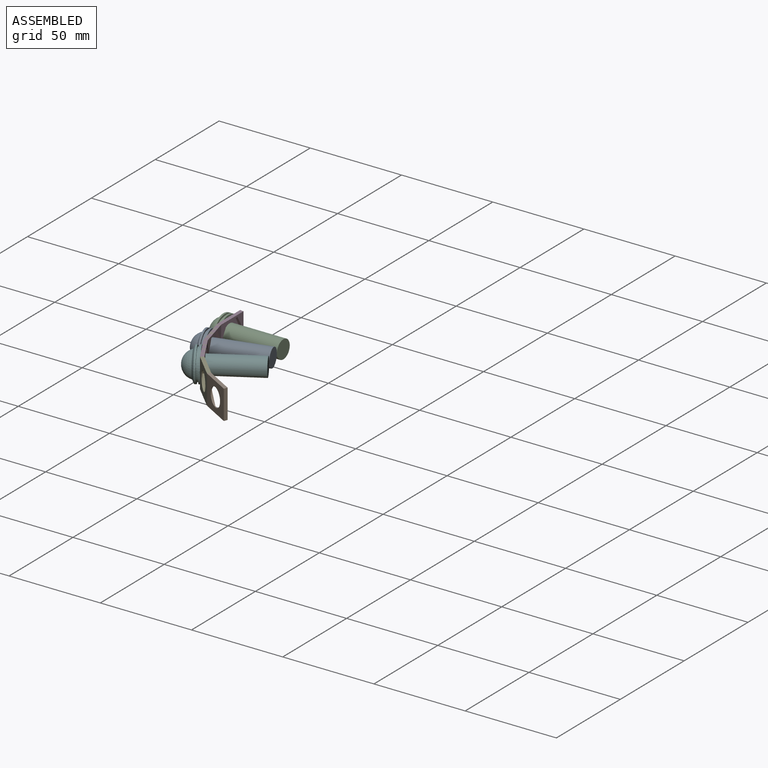
[diagram: assembled view]
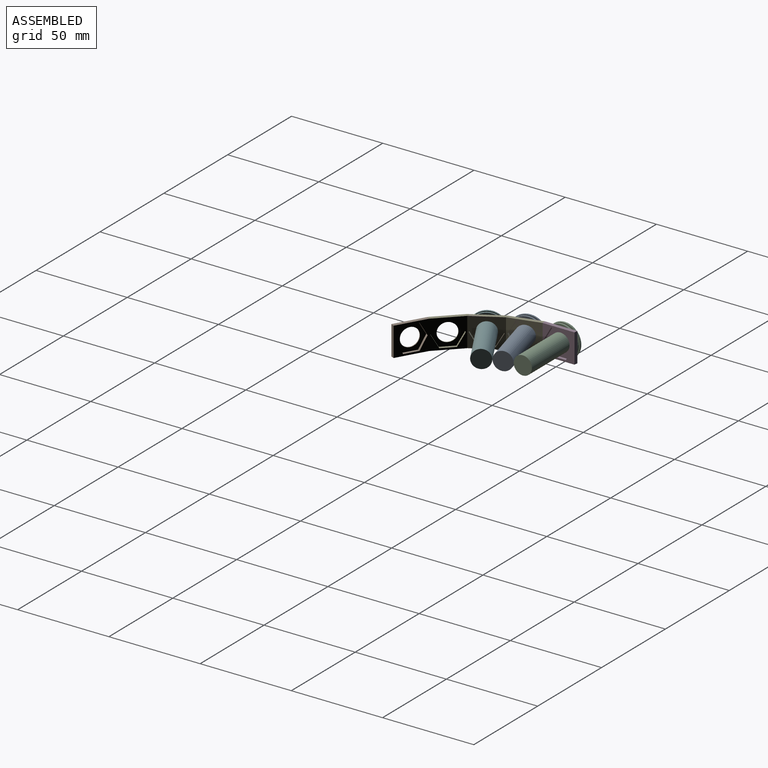
[diagram: assembled view, second angle]
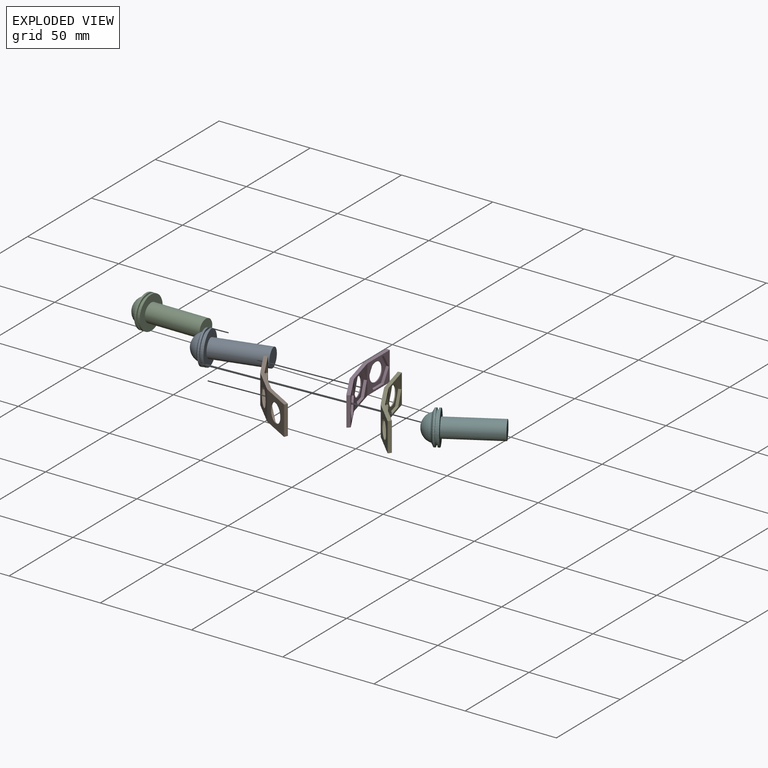
[diagram: exploded view]
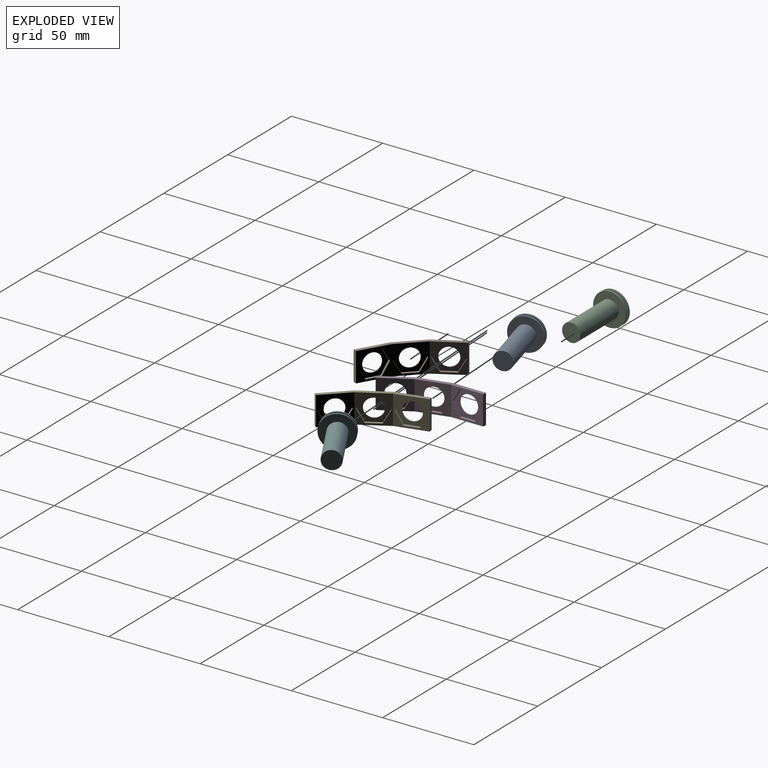
[diagram: exploded view, second angle]
ASSEMBLY  parts=6 mates=3
PART A: 10 faces, bbox 39.3x18x18 mm
  f0: cone r=9mm half-angle=63.4deg, axis (1,0,0), area 112.4mm2, adj f1,f7
  f1: sphere r=7.28mm, area 241.5mm2, adj f0
  f2: plane 18x18mm, normal (1,0,0), area 175.9mm2, adj f3,f8
  f3: cylinder r=9mm len=18mm, axis (-1,0,0), area 56.5mm2, adj f2,f4
  f4: plane 18x18mm, normal (-1,0,0), area 53.4mm2, adj f3,f5
  f5: cylinder r=8mm len=16mm, axis (-1,0,0), area 50.3mm2, adj f4,f6
  f6: plane 18x18mm, normal (1,0,0), area 53.4mm2, adj f5,f7
  f7: cylinder r=9mm len=18mm, axis (-1,0,0), area 56.5mm2, adj f0,f6
  f8: cylinder r=5mm len=30mm, axis (-1,0,0), area 942.5mm2, adj f2,f9
  f9: plane 10x10mm, normal (1,0,0), area 78.5mm2, adj f8
PART B: 38 faces, bbox 15.3x50.9x16 mm
  f0: cylinder r=5mm len=10mm, axis (1,0,0), area 15.7mm2, adj f4,f12
  f1: plane 50.93x15.26mm, normal (0,0,-1), area 106.3mm2, adj f2,f4,f5,f13,f14,f16,f17,f25
  f2: plane 16x1.94mm, normal (0.13,0.99,0), area 31.2mm2, adj f1,f3,f5,f13
  f3: plane 50.93x15.26mm, normal (0,0,1), area 106.3mm2, adj f2,f4,f5,f13,f14,f16,f17,f25
  f4: plane 17x16mm, normal (-1,0,0), area 193.5mm2, adj f0,f1,f3,f13,f14
  f5: plane 17.47x16mm, normal (1,0,0), area 109.8mm2, adj f1,f2,f3,f6,f7,f8,f9,f10
  f6: plane 7x4.04mm, normal (0,0.87,0.5), area 12.1mm2, adj f5,f7,f11,f12
  f7: plane 8.08x1.5mm, normal (0,0,1), area 12.1mm2, adj f5,f6,f8,f12
  f8: plane 7x4.04mm, normal (0,-0.87,0.5), area 12.1mm2, adj f5,f7,f9,f12
  f9: plane 7x4.04mm, normal (0,-0.87,-0.5), area 12.1mm2, adj f5,f8,f10,f12
  f10: plane 8.08x1.5mm, normal (0,0,-1), area 12.1mm2, adj f5,f9,f11,f12
  f11: plane 7x4.04mm, normal (0,0.87,-0.5), area 12.1mm2, adj f5,f6,f10,f12
  f12: plane 16.17x14mm, normal (1,0,0), area 91.2mm2, adj f0,f6,f7,f8,f9,f10,f11
  f13: plane 16x0.49mm, normal (-0.99,0.13,0), area 7.9mm2, adj f1,f2,f3,f4
  f14: plane 16x0.98mm, normal (-0.99,-0.13,0), area 15.9mm2, adj f1,f3,f4,f16
  f15: cylinder r=5mm len=10mm, axis (0.97,0.26,0), area 15.7mm2, adj f16,f24
  f16: plane 16.42x16mm, normal (-0.97,-0.26,0), area 193.5mm2, adj f1,f3,f14,f15,f25
  f17: plane 16.88x16mm, normal (0.97,0.26,0), area 109.8mm2, adj f1,f3,f5,f18,f19,f20,f21,f22
  f18: plane 7x4.29mm, normal (0.22,-0.84,0.5), area 12.1mm2, adj f17,f19,f23,f24
  f19: plane 8.2x3.54mm, normal (0,0,1), area 12.1mm2, adj f17,f18,f20,f24
  f20: plane 7x4.29mm, normal (-0.22,0.84,0.5), area 12.1mm2, adj f17,f19,f21,f24
  f21: plane 7x4.29mm, normal (-0.22,0.84,-0.5), area 12.1mm2, adj f17,f20,f22,f24
  f22: plane 8.2x3.54mm, normal (0,0,-1), area 12.1mm2, adj f17,f21,f23,f24
  f23: plane 7x4.29mm, normal (0.22,-0.84,-0.5), area 12.1mm2, adj f17,f18,f22,f24
  f24: plane 15.62x14mm, normal (0.97,0.26,0), area 91.2mm2, adj f15,f18,f19,f20,f21,f22,f23
  f25: plane 16x0.92mm, normal (-0.92,-0.38,0), area 15.9mm2, adj f1,f3,f16,f28
  f26: cylinder r=5mm len=10mm, axis (0.87,0.5,0), area 15.7mm2, adj f28,f36
  f27: plane 16x1.55mm, normal (0.61,-0.79,0), area 31.2mm2, adj f1,f3,f29,f37
  f28: plane 16x14.72mm, normal (-0.87,-0.5,0), area 193.5mm2, adj f1,f3,f25,f26,f37
  f29: plane 16x15.13mm, normal (0.87,0.5,0), area 109.8mm2, adj f1,f3,f17,f27,f30,f31,f32,f33
  f30: plane 7x4.25mm, normal (0.43,-0.75,0.5), area 12.1mm2, adj f29,f31,f35,f36
  f31: plane 7.75x5.34mm, normal (0,0,1), area 12.1mm2, adj f29,f30,f32,f36
  f32: plane 7x4.25mm, normal (-0.43,0.75,0.5), area 12.1mm2, adj f29,f31,f33,f36
  f33: plane 7x4.25mm, normal (-0.43,0.75,-0.5), area 12.1mm2, adj f29,f32,f34,f36
  f34: plane 7.75x5.34mm, normal (0,0,-1), area 12.1mm2, adj f29,f33,f35,f36
  f35: plane 7x4.25mm, normal (0.43,-0.75,-0.5), area 12.1mm2, adj f29,f30,f34,f36
  f36: plane 14x14mm, normal (0.87,0.5,0), area 91.2mm2, adj f26,f30,f31,f32,f33,f34,f35
  f37: plane 16x0.39mm, normal (-0.79,-0.61,0), area 7.9mm2, adj f1,f3,f27,f28
PART C: same geometry as A
PART D: same geometry as B
PART E: same geometry as B
PART F: same geometry as A
PLACE A rot(axis=(0,0,1),15deg) t=(-1.52,-17.85,0)mm
PLACE B rot(axis=(0,0,1),30deg) t=(9.02,-32,0)mm
PLACE C rot(axis=(-0.04,0.08,1),0deg) t=(-3.83,-0.32,0)mm
PLACE D rot(axis=(-0.13,0.08,0.99),0deg) t=(0.53,-0.32,0)mm
PLACE E rot(axis=(0,0,1),15deg) t=(2.69,-16.72,0)mm
PLACE F rot(axis=(0,0,1),30deg) t=(5.24,-34.18,0)mm
MATE fastened A.f8 <-> E.f0  axis (0.97,0.26,0) through (-2.14,-18.01,0)mm
MATE fastened C.f8 <-> D.f0  axis (1,0,0) through (-4.47,-0.32,0)mm
MATE fastened F.f8 <-> B.f0  axis (0.87,0.5,0) through (4.69,-34.5,0)mm
